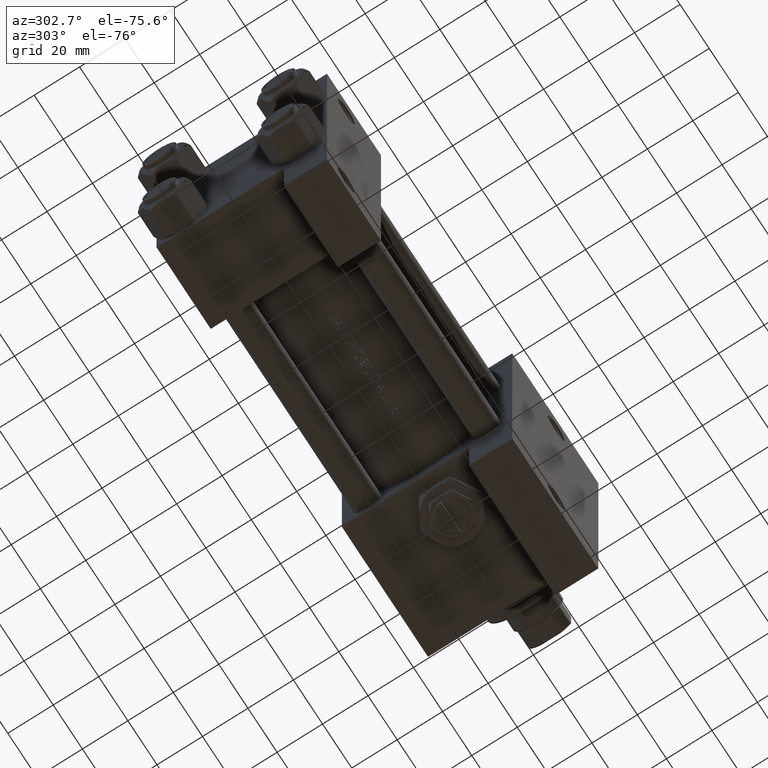
[diagram: clean part render]
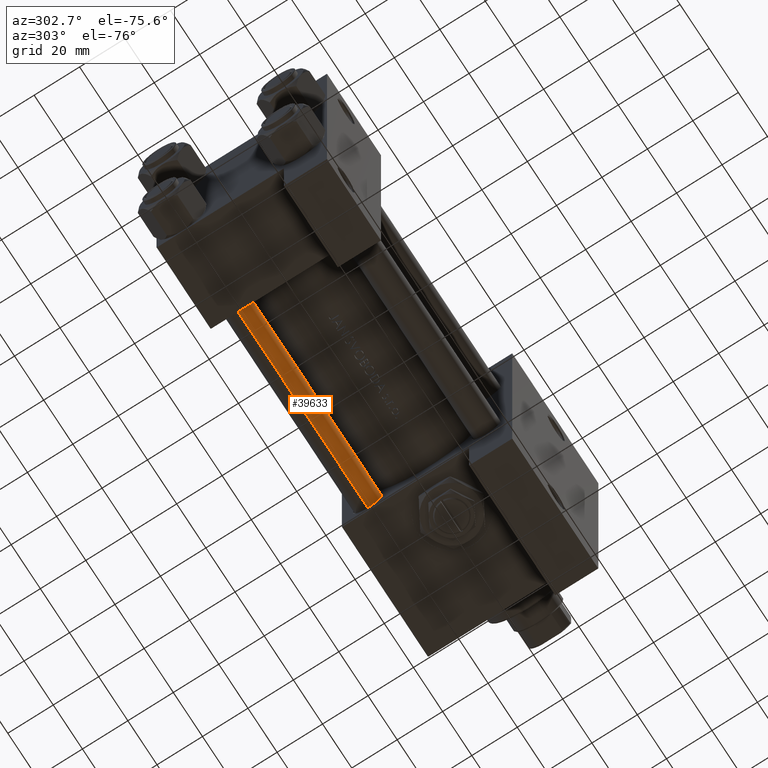
[diagram: same view with one face highlighted and labeled with its STEP entity id]
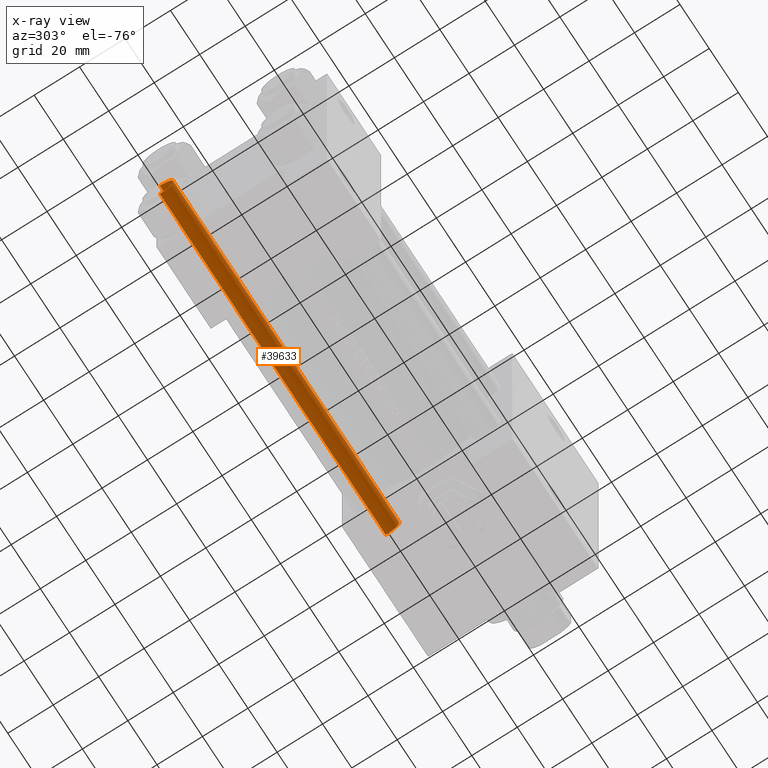
[diagram: x-ray of the same camera — body ghosted, the highlighted face saturated]
A machine part, auxiliary view. The second image highlights one B-rep face of the part: STEP entity #39633.
The next image is the same camera in x-ray: the body ghosted, the highlighted face saturated — about 0% of this face is hidden behind the body in this view.
In plain terms, the highlighted cylindrical surface (edge-blend (fillet) strip) has radius 6 mm, axis along (1, -0, -0).
Its self-contained STEP definition (entity closure, byte-faithful):
#1435 = ORIENTED_EDGE ( 'NONE', *, *, #13951, .T. ) ;
#1577 = LINE ( 'NONE', #46648, #6622 ) ;
#2201 = AXIS2_PLACEMENT_3D ( 'NONE', #5195, #12165, #20365 ) ;
#4549 = AXIS2_PLACEMENT_3D ( 'NONE', #29958, #45172, #26238 ) ;
#5195 = CARTESIAN_POINT ( 'NONE',  ( 0.000000000000000000, 0.000000000000000000, 156.0000000000000000 ) ) ;
#6622 = VECTOR ( 'NONE', #27714, 1000.000000000000000 ) ;
#6963 = EDGE_CURVE ( 'NONE', #45431, #13089, #43292, .T. ) ;
#7450 = EDGE_CURVE ( 'NONE', #13089, #27226, #25773, .T. ) ;
#7455 = CYLINDRICAL_SURFACE ( 'NONE', #2201, 6.000000000000000888 ) ;
#12165 = DIRECTION ( 'NONE',  ( -0.000000000000000000, -0.000000000000000000, -1.000000000000000000 ) ) ;
#12297 = AXIS2_PLACEMENT_3D ( 'NONE', #39639, #28425, #13279 ) ;
#13089 = VERTEX_POINT ( 'NONE', #19895 ) ;
#13279 = DIRECTION ( 'NONE',  ( 1.000000000000000000, 0.000000000000000000, 0.000000000000000000 ) ) ;
#13951 = EDGE_CURVE ( 'NONE', #45133, #45431, #24390, .T. ) ;
#17797 = VECTOR ( 'NONE', #46793, 1000.000000000000000 ) ;
#18885 = CARTESIAN_POINT ( 'NONE',  ( 6.000000000000000888, 7.347880794884120722E-16, 0.5000000000000281997 ) ) ;
#19895 = CARTESIAN_POINT ( 'NONE',  ( -6.000000000000000888, 0.000000000000000000, 0.5000000000000281997 ) ) ;
#20365 = DIRECTION ( 'NONE',  ( -1.000000000000000000, 0.000000000000000000, 0.000000000000000000 ) ) ;
#20868 = CARTESIAN_POINT ( 'NONE',  ( -6.000000000000000888, 0.000000000000000000, 156.0000000000000000 ) ) ;
#21566 = ORIENTED_EDGE ( 'NONE', *, *, #6963, .T. ) ;
#21863 = EDGE_LOOP ( 'NONE', ( #44506, #1435, #21566, #41519 ) ) ;
#23829 = CARTESIAN_POINT ( 'NONE',  ( 6.000000000000000888, 7.347880794884120722E-16, 155.4999999999999716 ) ) ;
#24390 = CIRCLE ( 'NONE', #4549, 6.000000000000000888 ) ;
#25106 = EDGE_CURVE ( 'NONE', #45133, #27226, #1577, .T. ) ;
#25773 = CIRCLE ( 'NONE', #12297, 6.000000000000000888 ) ;
#26238 = DIRECTION ( 'NONE',  ( 1.000000000000000000, 0.000000000000000000, 0.000000000000000000 ) ) ;
#27226 = VERTEX_POINT ( 'NONE', #18885 ) ;
#27714 = DIRECTION ( 'NONE',  ( -0.000000000000000000, -0.000000000000000000, -1.000000000000000000 ) ) ;
#28425 = DIRECTION ( 'NONE',  ( -0.000000000000000000, -0.000000000000000000, 1.000000000000000000 ) ) ;
#29958 = CARTESIAN_POINT ( 'NONE',  ( 0.000000000000000000, 0.000000000000000000, 155.4999999999999716 ) ) ;
#39633 = ADVANCED_FACE ( 'NONE', ( #41533 ), #7455, .T. ) ;
#39639 = CARTESIAN_POINT ( 'NONE',  ( 0.000000000000000000, 0.000000000000000000, 0.5000000000000281997 ) ) ;
#41519 = ORIENTED_EDGE ( 'NONE', *, *, #7450, .T. ) ;
#41533 = FACE_OUTER_BOUND ( 'NONE', #21863, .T. ) ;
#43292 = LINE ( 'NONE', #20868, #17797 ) ;
#44506 = ORIENTED_EDGE ( 'NONE', *, *, #25106, .F. ) ;
#45133 = VERTEX_POINT ( 'NONE', #23829 ) ;
#45172 = DIRECTION ( 'NONE',  ( 0.000000000000000000, 0.000000000000000000, -1.000000000000000000 ) ) ;
#45431 = VERTEX_POINT ( 'NONE', #45945 ) ;
#45945 = CARTESIAN_POINT ( 'NONE',  ( -6.000000000000000888, 0.000000000000000000, 155.4999999999999716 ) ) ;
#46648 = CARTESIAN_POINT ( 'NONE',  ( 6.000000000000000888, 7.347880794884120722E-16, 156.0000000000000000 ) ) ;
#46793 = DIRECTION ( 'NONE',  ( -0.000000000000000000, -0.000000000000000000, -1.000000000000000000 ) ) ;